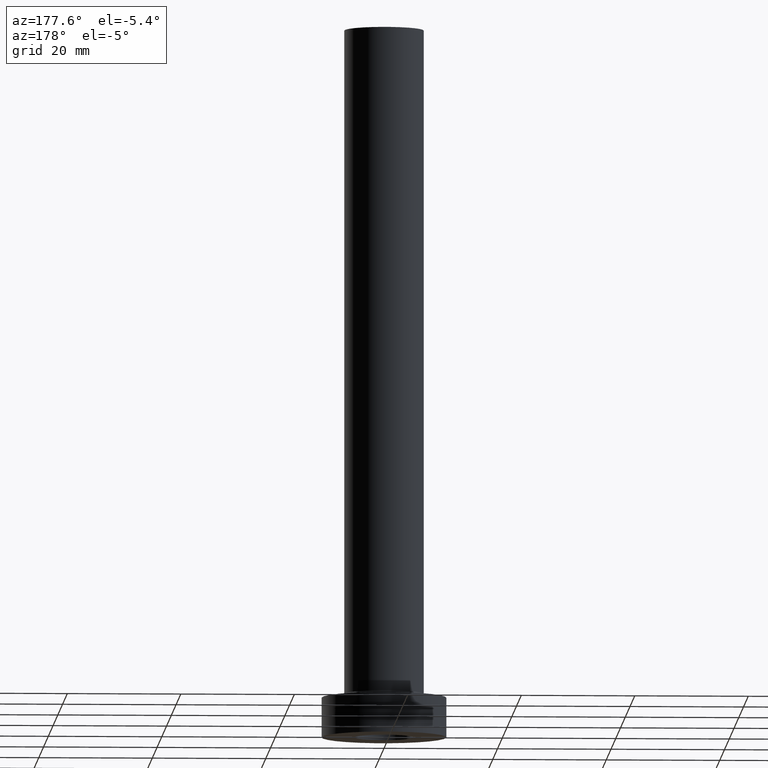
[diagram: clean part render]
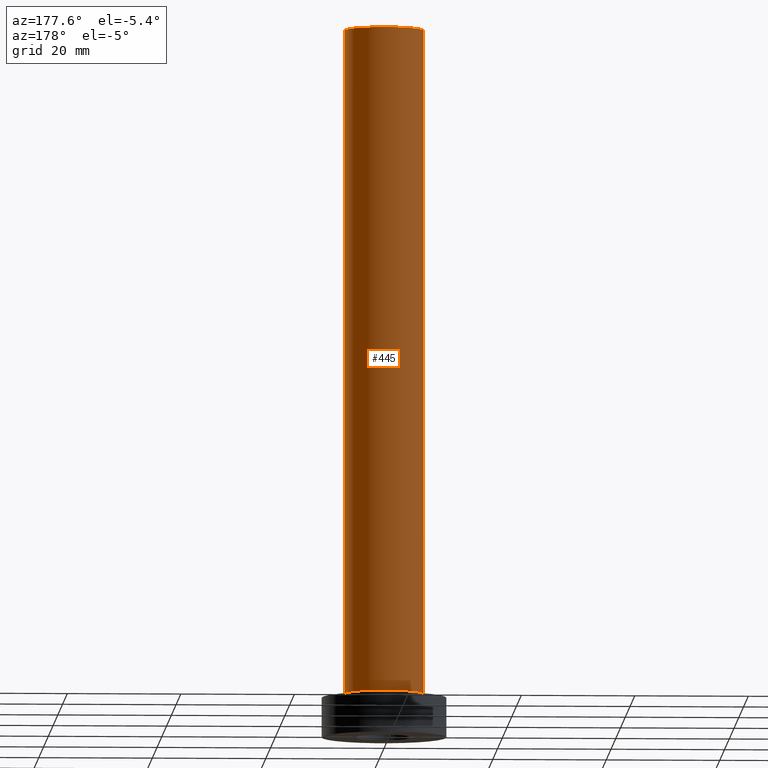
[diagram: same view with one face highlighted and labeled with its STEP entity id]
A machine part, auxiliary view. The second image highlights one B-rep face of the part: STEP entity #445.
In plain terms, the highlighted cylindrical surface (partial cylindrical patch) has radius 7 mm, axis along (-0, -0, -1).
Its self-contained STEP definition (entity closure, byte-faithful):
#5 = DIRECTION ( 'NONE',  ( -0.000000000000000000, -0.000000000000000000, -1.000000000000000000 ) ) ;
#6 = ORIENTED_EDGE ( 'NONE', *, *, #452, .T. ) ;
#8 = FACE_OUTER_BOUND ( 'NONE', #249, .T. ) ;
#64 = DIRECTION ( 'NONE',  ( 0.000000000000000000, 0.000000000000000000, 1.000000000000000000 ) ) ;
#70 = CIRCLE ( 'NONE', #223, 7.000000000000000888 ) ;
#80 = EDGE_CURVE ( 'NONE', #286, #359, #70, .T. ) ;
#99 = LINE ( 'NONE', #403, #295 ) ;
#102 = LINE ( 'NONE', #211, #186 ) ;
#105 = ORIENTED_EDGE ( 'NONE', *, *, #334, .T. ) ;
#123 = CARTESIAN_POINT ( 'NONE',  ( 0.000000000000000000, 0.000000000000000000, 7.699999999999998401 ) ) ;
#149 = ORIENTED_EDGE ( 'NONE', *, *, #267, .F. ) ;
#153 = DIRECTION ( 'NONE',  ( -1.000000000000000000, 0.000000000000000000, 0.000000000000000000 ) ) ;
#163 = ORIENTED_EDGE ( 'NONE', *, *, #80, .F. ) ;
#178 = CARTESIAN_POINT ( 'NONE',  ( 7.000000000000000888, 8.572527594031474176E-16, 7.699999999999998401 ) ) ;
#186 = VECTOR ( 'NONE', #279, 1000.000000000000000 ) ;
#211 = CARTESIAN_POINT ( 'NONE',  ( 7.000000000000000888, 8.572527594031474176E-16, 125.0000000000000000 ) ) ;
#222 = AXIS2_PLACEMENT_3D ( 'NONE', #291, #5, #153 ) ;
#223 = AXIS2_PLACEMENT_3D ( 'NONE', #280, #64, #306 ) ;
#247 = DIRECTION ( 'NONE',  ( -0.000000000000000000, -0.000000000000000000, -1.000000000000000000 ) ) ;
#249 = EDGE_LOOP ( 'NONE', ( #163, #105, #6, #149 ) ) ;
#262 = DIRECTION ( 'NONE',  ( 0.000000000000000000, 0.000000000000000000, 1.000000000000000000 ) ) ;
#267 = EDGE_CURVE ( 'NONE', #359, #311, #99, .T. ) ;
#275 = CIRCLE ( 'NONE', #392, 7.000000000000000888 ) ;
#279 = DIRECTION ( 'NONE',  ( -0.000000000000000000, -0.000000000000000000, -1.000000000000000000 ) ) ;
#280 = CARTESIAN_POINT ( 'NONE',  ( 0.000000000000000000, 0.000000000000000000, 125.0000000000000000 ) ) ;
#286 = VERTEX_POINT ( 'NONE', #371 ) ;
#291 = CARTESIAN_POINT ( 'NONE',  ( 0.000000000000000000, 0.000000000000000000, 125.0000000000000000 ) ) ;
#294 = DIRECTION ( 'NONE',  ( 1.000000000000000000, 0.000000000000000000, 0.000000000000000000 ) ) ;
#295 = VECTOR ( 'NONE', #247, 1000.000000000000000 ) ;
#306 = DIRECTION ( 'NONE',  ( 1.000000000000000000, 0.000000000000000000, 0.000000000000000000 ) ) ;
#311 = VERTEX_POINT ( 'NONE', #414 ) ;
#326 = CARTESIAN_POINT ( 'NONE',  ( -7.000000000000000888, 0.000000000000000000, 125.0000000000000000 ) ) ;
#330 = CYLINDRICAL_SURFACE ( 'NONE', #222, 7.000000000000000888 ) ;
#334 = EDGE_CURVE ( 'NONE', #286, #395, #102, .T. ) ;
#359 = VERTEX_POINT ( 'NONE', #326 ) ;
#371 = CARTESIAN_POINT ( 'NONE',  ( 7.000000000000000888, 8.572527594031474176E-16, 125.0000000000000000 ) ) ;
#392 = AXIS2_PLACEMENT_3D ( 'NONE', #123, #262, #294 ) ;
#395 = VERTEX_POINT ( 'NONE', #178 ) ;
#403 = CARTESIAN_POINT ( 'NONE',  ( -7.000000000000000888, 0.000000000000000000, 125.0000000000000000 ) ) ;
#414 = CARTESIAN_POINT ( 'NONE',  ( -7.000000000000000888, 0.000000000000000000, 7.699999999999998401 ) ) ;
#445 = ADVANCED_FACE ( 'NONE', ( #8 ), #330, .T. ) ;
#452 = EDGE_CURVE ( 'NONE', #395, #311, #275, .T. ) ;